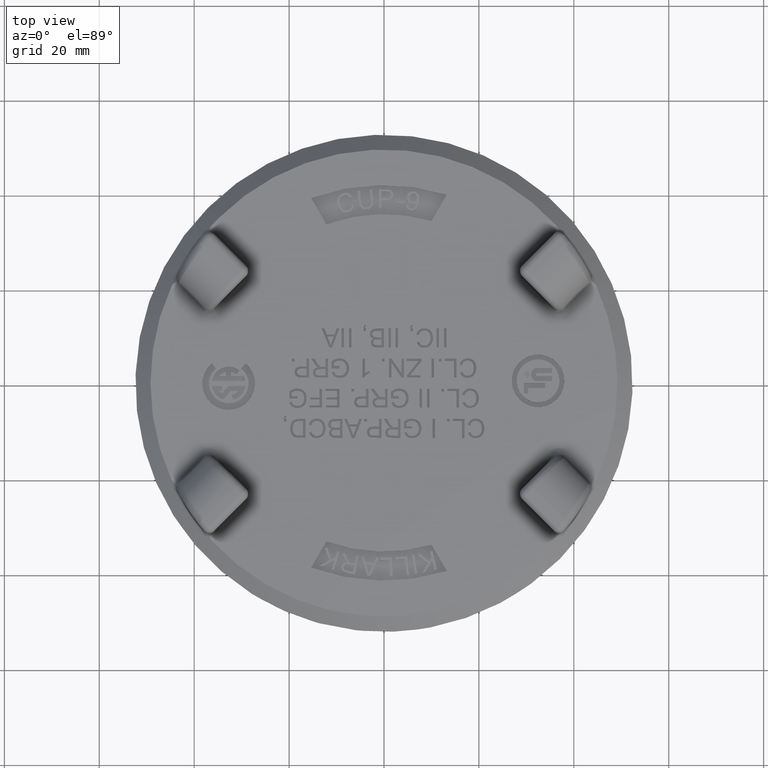
[diagram: clean part render]
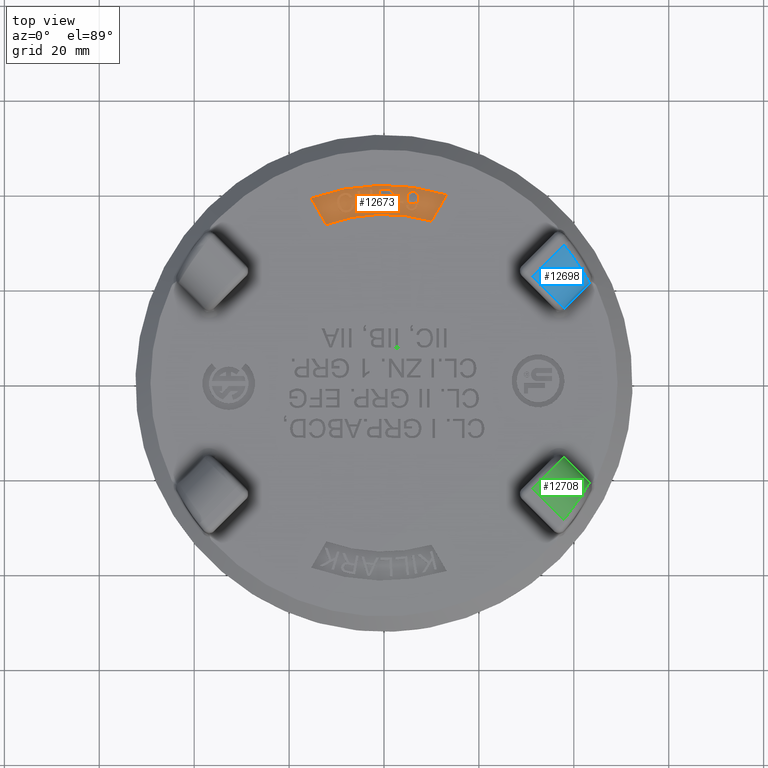
[diagram: same view with three faces highlighted in distinct colors, each labeled with its STEP entity id]
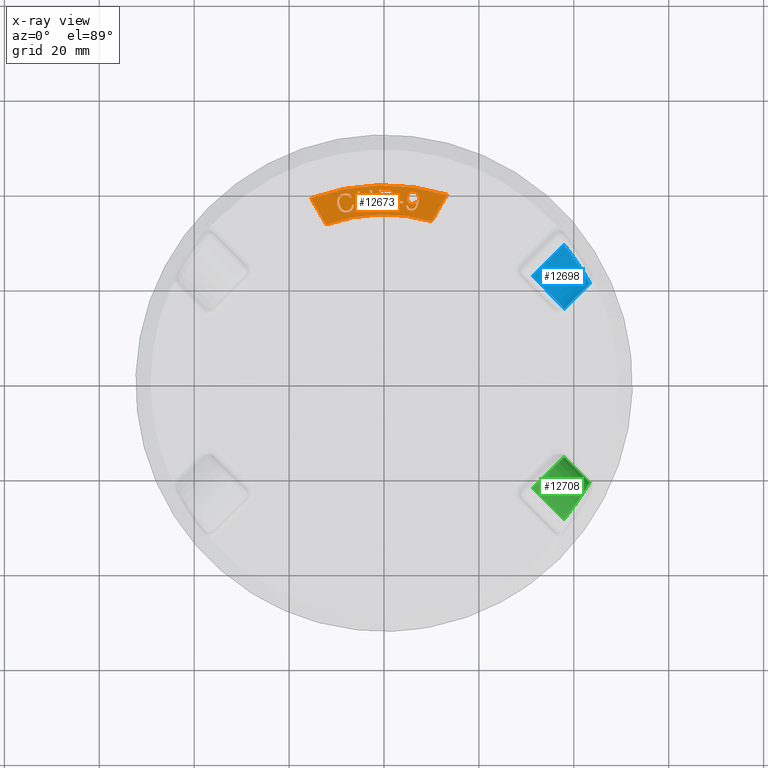
[diagram: x-ray of the same camera — body ghosted, the three highlighted faces saturated]
A machine part, top view with three faces highlighted in distinct colors.
The next image is the same camera in x-ray (body ghosted, the three faces saturated) — at least one of them is partly hidden behind the body in this view.
Their STEP definitions:

[orange] entity #12673 — the highlighted planar face has unit normal (0, 0, 1).
#278=ELLIPSE('',#13491,79.2572808631897,8.90706533019541);
#382=B_SPLINE_CURVE_WITH_KNOTS('',3,(#19733,#19734,#19735,#19736,#19737,
#19738,#19739,#19740,#19741),.UNSPECIFIED.,.F.,.F.,(4,1,1,1,1,1,4),(0.363467789549163,
0.409691499853247,0.455915210157331,0.479027065309373,0.490582992885394,
0.502138920461415,0.548362630765499),.UNSPECIFIED.);
#383=B_SPLINE_CURVE_WITH_KNOTS('',3,(#19743,#19744,#19745,#19746,#19747,
#19748,#19749,#19750,#19751,#19752,#19753,#19754,#19755,#19756,#19757,#19758,
#19759,#19760,#19761,#19762),.UNSPECIFIED.,.F.,.F.,(4,1,1,1,1,1,1,1,1,1,
1,1,1,1,1,1,1,4),(0.548362630765499,0.589313797554621,0.609789380949183,
0.630264964343744,0.650740547738305,0.671216131132866,0.691691714527428,
0.712167297921989,0.73264288131655,0.753118464711112,0.763356256408392,
0.773594048105673,0.794069631500234,0.814545214894796,0.824783006592076,
0.835020798289357,0.855496381683918,0.87597196507848),.UNSPECIFIED.);
#384=B_SPLINE_CURVE_WITH_KNOTS('',3,(#19766,#19767,#19768,#19769),
 .UNSPECIFIED.,.F.,.F.,(4,4),(0.,0.0585242731863902),.UNSPECIFIED.);
#385=B_SPLINE_CURVE_WITH_KNOTS('',3,(#19773,#19774,#19775,#19776,#19777,
#19778,#19779,#19780,#19781,#19782,#19783,#19784,#19785,#19786,#19787,#19788,
#19789,#19790,#19791,#19792,#19793,#19794,#19795,#19796),.UNSPECIFIED.,
 .F.,.F.,(4,1,1,1,1,1,1,1,1,1,1,1,1,1,1,1,1,1,1,1,1,4),(0.0917702085686012,
0.11823171529874,0.131462468663809,0.144693222028878,0.157923975393948,
0.164539352076482,0.171154728759017,0.184385482124086,0.197616235489156,
0.224077742219294,0.237308495584363,0.250539248949433,0.263770002314502,
0.270385378997037,0.277000755679571,0.283616132362106,0.290231509044641,
0.293539197385908,0.296846885727175,0.298500729897809,0.300154574068443,
0.30346226240971),.UNSPECIFIED.);
#386=B_SPLINE_CURVE_WITH_KNOTS('',3,(#19797,#19798,#19799,#19800,#19801,
#19802,#19803,#19804,#19805,#19806,#19807,#19808,#19809,#19810,#19811,#19812,
#19813,#19814,#19815,#19816,#19817,#19818,#19819,#19820,#19821,#19822,#19823,
#19824,#19825,#19826,#19827,#19828,#19829,#19830,#19831,#19832,#19833,#19834,
#19835,#19836,#19837,#19838,#19839,#19840,#19841,#19842),.UNSPECIFIED.,
 .F.,.F.,(4,1,1,1,1,1,1,1,1,1,1,1,1,1,1,1,1,1,1,1,1,1,1,1,1,1,1,1,1,1,1,
1,1,1,1,1,1,1,1,1,1,1,1,4),(0.30346226240971,0.325229066709406,0.336112468859255,
0.346995871009103,0.3687626753088,0.390529479608496,0.412296283908193,0.434063088207889,
0.455829892507586,0.477596696807282,0.499363501106979,0.510246903256827,
0.521130305406675,0.542897109706372,0.564663914006069,0.575547316155917,
0.586430718305765,0.608197522605462,0.629964326905158,0.640847729055007,
0.651731131204855,0.673497935504551,0.695264739804248,0.717031544103945,
0.738798348403641,0.749681750553489,0.760565152703338,0.771448554853186,
0.782331957003034,0.787773658077958,0.793215359152883,0.798657060227807,
0.804098761302731,0.814982163452579,0.825865565602427,0.836748967752276,
0.847632369902124,0.869399174201821,0.891165978501517,0.912932782801214,
0.93469958710091,0.956466391400607,0.978233195700303,1.),.UNSPECIFIED.);
#387=B_SPLINE_CURVE_WITH_KNOTS('',3,(#19857,#19858,#19859,#19860,#19861,
#19862,#19863,#19864,#19865,#19866,#19867,#19868,#19869,#19870,#19871,#19872,
#19873,#19874,#19875,#19876,#19877,#19878,#19879,#19880,#19881,#19882,#19883,
#19884,#19885,#19886,#19887,#19888,#19889),.UNSPECIFIED.,.F.,.F.,(4,1,1,
1,1,1,1,1,1,1,1,1,1,1,1,1,1,1,1,1,1,1,1,1,1,1,1,1,1,1,4),(0.113305528693998,
0.142207398664906,0.171109268635813,0.185560203621267,0.200011138606721,
0.214462073592175,0.228913008577629,0.243363943563083,0.257814878548536,
0.27226581353399,0.286716748519444,0.301167683504898,0.315618618490352,
0.330069553475806,0.34452048846126,0.351745955953986,0.358971423446713,
0.373422358432167,0.387873293417621,0.402324228403075,0.431226098373983,
0.445677033359436,0.46012796834489,0.474578903330344,0.489029838315798,
0.496255305808525,0.503480773301252,0.517931708286706,0.532382643272159,
0.546833578257613,0.575735448228521),.UNSPECIFIED.);
#388=B_SPLINE_CURVE_WITH_KNOTS('',3,(#19892,#19893,#19894,#19895,#19896,
#19897,#19898,#19899,#19900,#19901,#19902,#19903,#19904,#19905,#19906,#19907,
#19908,#19909,#19910,#19911,#19912,#19913,#19914,#19915,#19916,#19917,#19918),
 .UNSPECIFIED.,.F.,.F.,(4,1,1,1,1,1,1,1,1,1,1,1,1,1,1,1,1,1,1,1,1,1,1,1,
4),(0.599351504712554,0.62439203566802,0.649432566623485,0.67447309757895,
0.686993363056683,0.699513628534416,0.705773761273282,0.712033894012148,
0.724554159489881,0.737074424967614,0.749594690445347,0.762114955923079,
0.774635221400812,0.799675752356277,0.81219601783401,0.824716283311743,
0.837236548789475,0.849756814267208,0.874797345222673,0.899837876178139,
0.912358141655871,0.924878407133604,0.949918938089069,0.974959469044535,
1.),.UNSPECIFIED.);
#389=B_SPLINE_CURVE_WITH_KNOTS('',3,(#19925,#19926,#19927,#19928,#19929,
#19930,#19931,#19932,#19933,#19934,#19935,#19936,#19937,#19938,#19939,#19940,
#19941,#19942,#19943,#19944,#19945,#19946,#19947,#19948,#19949,#19950,#19951,
#19952,#19953,#19954,#19955,#19956,#19957,#19958,#19959,#19960),
 .UNSPECIFIED.,.F.,.F.,(4,1,1,1,1,1,1,1,1,1,1,1,1,1,1,1,1,1,1,1,1,1,1,1,
1,1,1,1,1,1,1,1,1,4),(0.0558817175359714,0.0875894107574,0.103443257368114,
0.119297103978829,0.135150950589543,0.1430778738949,0.151004797200257,0.158931720505614,
0.166858643810972,0.182712490421686,0.1985663370324,0.214420183643114,0.230274030253829,
0.238200953559186,0.246127876864543,0.261981723475257,0.277835570085972,
0.285762493391329,0.293689416696686,0.3095432633074,0.325397109918114,0.341250956528829,
0.357104803139543,0.372958649750257,0.388812496360972,0.404666342971686,
0.436374036193115,0.452227882803829,0.468081729414543,0.483935576025257,
0.499789422635972,0.515643269246686,0.5314971158574,0.563204809078829),
 .UNSPECIFIED.);
#390=B_SPLINE_CURVE_WITH_KNOTS('',3,(#19963,#19964,#19965,#19966,#19967,
#19968,#19969,#19970,#19971,#19972,#19973,#19974,#19975,#19976,#19977,#19978,
#19979,#19980,#19981,#19982,#19983,#19984,#19985,#19986,#19987),
 .UNSPECIFIED.,.F.,.F.,(4,1,1,1,1,1,1,1,1,1,1,1,1,1,1,1,1,1,1,1,1,1,4),
(0.587910286267201,0.613665893375501,0.626543696929651,0.639421500483801,
0.652299304037951,0.665177107592101,0.678054911146251,0.690932714700401,
0.703810518254551,0.716688321808701,0.729566125362851,0.742443928917001,
0.755321732471151,0.768199536025301,0.7939551431336,0.8197107502419,0.8454663573502,
0.8712219644585,0.8969775715668,0.9227331786751,0.9484887857834,0.9742443928917,
1.),.UNSPECIFIED.);
#687=FACE_BOUND('',#4286,.T.);
#688=FACE_BOUND('',#4287,.T.);
#689=FACE_BOUND('',#4288,.T.);
#690=FACE_BOUND('',#4289,.T.);
#691=FACE_BOUND('',#4290,.T.);
#1020=LINE('',#19723,#2385);
#1021=LINE('',#19726,#2386);
#1022=LINE('',#19729,#2387);
#1023=LINE('',#19731,#2388);
#1024=LINE('',#19763,#2389);
#1025=LINE('',#19771,#2390);
#1026=LINE('',#19845,#2391);
#1027=LINE('',#19847,#2392);
#1028=LINE('',#19849,#2393);
#1029=LINE('',#19850,#2394);
#1030=LINE('',#19853,#2395);
#1031=LINE('',#19855,#2396);
#1032=LINE('',#19891,#2397);
#1033=LINE('',#19923,#2398);
#1034=LINE('',#19962,#2399);
#2385=VECTOR('',#14614,6.38902524855147);
#2386=VECTOR('',#14617,6.38902524855163);
#2387=VECTOR('',#14618,10.);
#2388=VECTOR('',#14619,10.);
#2389=VECTOR('',#14620,10.);
#2390=VECTOR('',#14621,10.);
#2391=VECTOR('',#14622,10.);
#2392=VECTOR('',#14623,10.);
#2393=VECTOR('',#14624,10.);
#2394=VECTOR('',#14625,10.);
#2395=VECTOR('',#14626,10.);
#2396=VECTOR('',#14627,10.);
#2397=VECTOR('',#14628,10.);
#2398=VECTOR('',#14631,10.);
#2399=VECTOR('',#14632,10.);
#3463=FACE_OUTER_BOUND('',#4285,.T.);
#4285=EDGE_LOOP('',(#8804,#8805,#8806,#8807));
#4286=EDGE_LOOP('',(#8808,#8809,#8810,#8811,#8812));
#4287=EDGE_LOOP('',(#8813,#8814,#8815,#8816));
#4288=EDGE_LOOP('',(#8817,#8818,#8819,#8820));
#4289=EDGE_LOOP('',(#8821,#8822,#8823,#8824,#8825));
#4290=EDGE_LOOP('',(#8826,#8827,#8828,#8829,#8830));
#5114=CIRCLE('',#13489,44.45);
#5115=CIRCLE('',#13490,35.56);
#5671=VERTEX_POINT('',#19719);
#5672=VERTEX_POINT('',#19720);
#5673=VERTEX_POINT('',#19722);
#5674=VERTEX_POINT('',#19724);
#5675=VERTEX_POINT('',#19727);
#5676=VERTEX_POINT('',#19728);
#5677=VERTEX_POINT('',#19730);
#5678=VERTEX_POINT('',#19732);
#5679=VERTEX_POINT('',#19742);
#5680=VERTEX_POINT('',#19764);
#5681=VERTEX_POINT('',#19765);
#5682=VERTEX_POINT('',#19770);
#5683=VERTEX_POINT('',#19772);
#5684=VERTEX_POINT('',#19843);
#5685=VERTEX_POINT('',#19844);
#5686=VERTEX_POINT('',#19846);
#5687=VERTEX_POINT('',#19848);
#5688=VERTEX_POINT('',#19851);
#5689=VERTEX_POINT('',#19852);
#5690=VERTEX_POINT('',#19854);
#5691=VERTEX_POINT('',#19856);
#5692=VERTEX_POINT('',#19890);
#5693=VERTEX_POINT('',#19919);
#5694=VERTEX_POINT('',#19920);
#5695=VERTEX_POINT('',#19922);
#5696=VERTEX_POINT('',#19924);
#5697=VERTEX_POINT('',#19961);
#6914=EDGE_CURVE('',#5671,#5672,#5114,.T.);
#6915=EDGE_CURVE('',#5673,#5671,#1020,.T.);
#6916=EDGE_CURVE('',#5674,#5673,#5115,.T.);
#6917=EDGE_CURVE('',#5672,#5674,#1021,.T.);
#6918=EDGE_CURVE('',#5675,#5676,#1022,.T.);
#6919=EDGE_CURVE('',#5676,#5677,#1023,.T.);
#6920=EDGE_CURVE('',#5677,#5678,#382,.T.);
#6921=EDGE_CURVE('',#5678,#5679,#383,.T.);
#6922=EDGE_CURVE('',#5679,#5675,#1024,.T.);
#6923=EDGE_CURVE('',#5680,#5681,#384,.T.);
#6924=EDGE_CURVE('',#5681,#5682,#1025,.T.);
#6925=EDGE_CURVE('',#5682,#5683,#385,.T.);
#6926=EDGE_CURVE('',#5683,#5680,#386,.T.);
#6927=EDGE_CURVE('',#5684,#5685,#1026,.T.);
#6928=EDGE_CURVE('',#5685,#5686,#1027,.T.);
#6929=EDGE_CURVE('',#5686,#5687,#1028,.T.);
#6930=EDGE_CURVE('',#5687,#5684,#1029,.T.);
#6931=EDGE_CURVE('',#5688,#5689,#1030,.T.);
#6932=EDGE_CURVE('',#5689,#5690,#1031,.T.);
#6933=EDGE_CURVE('',#5690,#5691,#387,.T.);
#6934=EDGE_CURVE('',#5691,#5692,#1032,.T.);
#6935=EDGE_CURVE('',#5692,#5688,#388,.T.);
#6936=EDGE_CURVE('',#5693,#5694,#278,.T.);
#6937=EDGE_CURVE('',#5694,#5695,#1033,.T.);
#6938=EDGE_CURVE('',#5695,#5696,#389,.T.);
#6939=EDGE_CURVE('',#5696,#5697,#1034,.T.);
#6940=EDGE_CURVE('',#5697,#5693,#390,.T.);
#8804=ORIENTED_EDGE('',*,*,#6914,.F.);
#8805=ORIENTED_EDGE('',*,*,#6915,.F.);
#8806=ORIENTED_EDGE('',*,*,#6916,.F.);
#8807=ORIENTED_EDGE('',*,*,#6917,.F.);
#8808=ORIENTED_EDGE('',*,*,#6918,.T.);
#8809=ORIENTED_EDGE('',*,*,#6919,.T.);
#8810=ORIENTED_EDGE('',*,*,#6920,.T.);
#8811=ORIENTED_EDGE('',*,*,#6921,.T.);
#8812=ORIENTED_EDGE('',*,*,#6922,.T.);
#8813=ORIENTED_EDGE('',*,*,#6923,.T.);
#8814=ORIENTED_EDGE('',*,*,#6924,.T.);
#8815=ORIENTED_EDGE('',*,*,#6925,.T.);
#8816=ORIENTED_EDGE('',*,*,#6926,.T.);
#8817=ORIENTED_EDGE('',*,*,#6927,.T.);
#8818=ORIENTED_EDGE('',*,*,#6928,.T.);
#8819=ORIENTED_EDGE('',*,*,#6929,.T.);
#8820=ORIENTED_EDGE('',*,*,#6930,.T.);
#8821=ORIENTED_EDGE('',*,*,#6931,.T.);
#8822=ORIENTED_EDGE('',*,*,#6932,.T.);
#8823=ORIENTED_EDGE('',*,*,#6933,.T.);
#8824=ORIENTED_EDGE('',*,*,#6934,.T.);
#8825=ORIENTED_EDGE('',*,*,#6935,.T.);
#8826=ORIENTED_EDGE('',*,*,#6936,.T.);
#8827=ORIENTED_EDGE('',*,*,#6937,.T.);
#8828=ORIENTED_EDGE('',*,*,#6938,.T.);
#8829=ORIENTED_EDGE('',*,*,#6939,.T.);
#8830=ORIENTED_EDGE('',*,*,#6940,.T.);
#12173=PLANE('',#13488);
#12673=ADVANCED_FACE('',(#3463,#687,#688,#689,#690,#691),#12173,.T.);
#13488=AXIS2_PLACEMENT_3D('',#19718,#14610,#14611);
#13489=AXIS2_PLACEMENT_3D('',#19721,#14612,#14613);
#13490=AXIS2_PLACEMENT_3D('',#19725,#14615,#14616);
#13491=AXIS2_PLACEMENT_3D('',#19921,#14629,#14630);
#14610=DIRECTION('center_axis',(1.57009245868377E-16,1.57009245868378E-16,
1.));
#14611=DIRECTION('ref_axis',(0.707106781186547,0.707106781186548,-2.22044604925031E-16));
#14612=DIRECTION('center_axis',(-1.57009245868377E-16,-1.57009245868378E-16,
-1.));
#14613=DIRECTION('ref_axis',(-0.707106781186547,-0.707106781186548,2.22044604925031E-16));
#14614=DIRECTION('',(-0.5,0.866025403784438,-5.74693726168631E-17));
#14615=DIRECTION('center_axis',(1.57009245868377E-16,1.57009245868378E-16,
1.));
#14616=DIRECTION('ref_axis',(-0.707106781186547,-0.707106781186548,2.22044604925031E-16));
#14617=DIRECTION('',(-0.500000000000001,-0.866025403784438,2.14478618485241E-16));
#14618=DIRECTION('',(-0.99995953786908,0.00899570034269864,1.5559048481285E-16));
#14619=DIRECTION('',(0.00899570034269537,0.99995953786908,-1.5841530106658E-16));
#14620=DIRECTION('',(-0.00899570034269598,-0.99995953786908,1.5841530106658E-16));
#14621=DIRECTION('',(0.997999028420859,-0.0632292596115204,-1.46767496461312E-16));
#14622=DIRECTION('',(-0.996221776074981,0.0868456842566737,1.42780454387125E-16));
#14623=DIRECTION('',(0.0868456842566775,0.996221776074981,-1.70051605171253E-16));
#14624=DIRECTION('',(0.996221776074981,-0.086845684256674,-1.42780454387125E-16));
#14625=DIRECTION('',(-0.0868456842566648,-0.996221776074982,1.70051605171251E-16));
#14626=DIRECTION('',(-0.0991362595321481,0.995073867632938,-1.40670488193023E-16));
#14627=DIRECTION('',(0.995073867632939,0.0991362595321455,-1.71801106887731E-16));
#14628=DIRECTION('',(0.995073867632938,0.0991362595321508,-1.71801106887732E-16));
#14629=DIRECTION('center_axis',(1.57009245868377E-16,1.57009245868378E-16,
1.));
#14630=DIRECTION('ref_axis',(-0.772594850998069,0.634899359120224,2.16194653392155E-17));
#14631=DIRECTION('',(0.999359376972054,-0.0357887644104787,-1.51289495219223E-16));
#14632=DIRECTION('',(-0.903283464134544,-0.429044267437637,2.09187772383674E-16));
#19718=CARTESIAN_POINT('Origin',(-0.0350789437184983,-2.77734238203105,
13.5165767122275));
#19719=CARTESIAN_POINT('',(-15.3593153427096,38.9475935530646,13.5165767122275));
#19720=CARTESIAN_POINT('',(13.2069422481487,39.6543836582108,13.5165767122275));
#19721=CARTESIAN_POINT('Origin',(-0.0350789437184983,-2.77734238203105,
13.5165767122275));
#19722=CARTESIAN_POINT('',(-12.1648027184338,33.4145353823988,13.5165767122275));
#19723=CARTESIAN_POINT('',(-12.1648027184338,33.4145353823988,13.5165767122275));
#19724=CARTESIAN_POINT('',(10.0124296238723,34.1213254875452,13.5165767122275));
#19725=CARTESIAN_POINT('Origin',(2.12222751630891E-15,2.12222751630891E-15,
13.5165767122275));
#19726=CARTESIAN_POINT('',(13.2069422481482,39.6543836582111,13.5165767122275));
#19727=CARTESIAN_POINT('',(-0.564133704252513,36.836565263683,13.5165767122275));
#19728=CARTESIAN_POINT('',(-1.09003017840075,36.841296262202,13.5165767122275));
#19729=CARTESIAN_POINT('',(-0.564133704252509,36.836565263683,13.5165767122275));
#19730=CARTESIAN_POINT('',(-1.05432849266568,40.8098856781199,13.5165767122275));
#19731=CARTESIAN_POINT('',(-1.09003017840075,36.841296262202,13.5165767122275));
#19732=CARTESIAN_POINT('',(1.04688898714448,40.7534159165797,13.5165767122275));
#19733=CARTESIAN_POINT('Ctrl Pts',(-1.05432849266568,40.8098856781199,13.5165767122275));
#19734=CARTESIAN_POINT('Ctrl Pts',(-0.863801005570784,40.808171680587,13.5165767122275));
#19735=CARTESIAN_POINT('Ctrl Pts',(-0.482830507768899,40.8047274182045,
13.5165767122275));
#19736=CARTESIAN_POINT('Ctrl Pts',(-0.00619500357707654,40.8005034268093,
13.5165767122275));
#19737=CARTESIAN_POINT('Ctrl Pts',(0.32667372254346,40.7973971768616,13.5165767122275));
#19738=CARTESIAN_POINT('Ctrl Pts',(0.518088211711158,40.7958539861528,13.5165767122275));
#19739=CARTESIAN_POINT('Ctrl Pts',(0.778885788171975,40.788501180721,13.5165767122275));
#19740=CARTESIAN_POINT('Ctrl Pts',(0.946273482149587,40.7727132325619,13.5165767122275));
#19741=CARTESIAN_POINT('Ctrl Pts',(1.04688898714448,40.7534159165797,13.5165767122275));
#19742=CARTESIAN_POINT('',(-0.549621046633419,38.4497882316783,13.5165767122275));
#19743=CARTESIAN_POINT('Ctrl Pts',(1.04688898714448,40.7534159165797,13.5165767122275));
#19744=CARTESIAN_POINT('Ctrl Pts',(1.22861893654046,40.7214448016615,13.5165767122275));
#19745=CARTESIAN_POINT('Ctrl Pts',(1.45791932047612,40.6362692256785,13.5165767122275));
#19746=CARTESIAN_POINT('Ctrl Pts',(1.6848080522042,40.4428196126137,13.5165767122275));
#19747=CARTESIAN_POINT('Ctrl Pts',(1.82276701012181,40.2483423084584,13.5165767122275));
#19748=CARTESIAN_POINT('Ctrl Pts',(1.92538375504175,40.0101634222952,13.5165767122275));
#19749=CARTESIAN_POINT('Ctrl Pts',(1.96954521153713,39.7551153618703,13.5165767122275));
#19750=CARTESIAN_POINT('Ctrl Pts',(1.96360883583161,39.47686497562,13.5165767122275));
#19751=CARTESIAN_POINT('Ctrl Pts',(1.910425246878,39.2279100222914,13.5165767122275));
#19752=CARTESIAN_POINT('Ctrl Pts',(1.80951109743341,39.0008476173896,13.5165767122275));
#19753=CARTESIAN_POINT('Ctrl Pts',(1.68683401034991,38.8304324482667,13.5165767122275));
#19754=CARTESIAN_POINT('Ctrl Pts',(1.56328529869953,38.707369051912,13.5165767122275));
#19755=CARTESIAN_POINT('Ctrl Pts',(1.41208664725309,38.6040758503441,13.5165767122275));
#19756=CARTESIAN_POINT('Ctrl Pts',(1.17577010291243,38.5074144805631,13.5165767122275));
#19757=CARTESIAN_POINT('Ctrl Pts',(0.874927401051902,38.4552446947192,13.5165767122275));
#19758=CARTESIAN_POINT('Ctrl Pts',(0.596925210557571,38.4390992833266,13.5165767122275));
#19759=CARTESIAN_POINT('Ctrl Pts',(0.29045448185985,38.4424476996951,13.5165767122275));
#19760=CARTESIAN_POINT('Ctrl Pts',(-0.0911072315808822,38.4455845604329,
13.5165767122275));
#19761=CARTESIAN_POINT('Ctrl Pts',(-0.396821881550675,38.4484136405577,
13.5165767122275));
#19762=CARTESIAN_POINT('Ctrl Pts',(-0.549621046633419,38.4497882316783,
13.5165767122275));
#19763=CARTESIAN_POINT('',(-0.549621046633419,38.4497882316783,13.5165767122275));
#19764=CARTESIAN_POINT('',(4.88898617211524,36.7072746313057,13.5165767122275));
#19765=CARTESIAN_POINT('',(4.6521131590449,37.4805094360629,13.5165767122275));
#19766=CARTESIAN_POINT('Ctrl Pts',(4.88898617211524,36.7072746313057,13.5165767122275));
#19767=CARTESIAN_POINT('Ctrl Pts',(4.72128482477789,36.9084259197049,13.5165767122275));
#19768=CARTESIAN_POINT('Ctrl Pts',(4.64255611020213,37.1654495725024,13.5165767122275));
#19769=CARTESIAN_POINT('Ctrl Pts',(4.65211315904491,37.4805094360629,13.5165767122275));
#19770=CARTESIAN_POINT('',(5.12125070816723,37.4507867419097,13.5165767122275));
#19771=CARTESIAN_POINT('',(4.65211315904491,37.4805094360629,13.5165767122275));
#19772=CARTESIAN_POINT('',(6.823898568964,38.1003479969105,13.5165767122275));
#19773=CARTESIAN_POINT('Ctrl Pts',(5.12125070816723,37.4507867419097,13.5165767122275));
#19774=CARTESIAN_POINT('Ctrl Pts',(5.12459049594489,37.2958124401314,13.5165767122275));
#19775=CARTESIAN_POINT('Ctrl Pts',(5.16197981750456,37.1012363398104,13.5165767122275));
#19776=CARTESIAN_POINT('Ctrl Pts',(5.27768829980317,36.9232381951719,13.5165767122275));
#19777=CARTESIAN_POINT('Ctrl Pts',(5.39349119091756,36.8236273779655,13.5165767122275));
#19778=CARTESIAN_POINT('Ctrl Pts',(5.51275940038159,36.7659104742927,13.5165767122275));
#19779=CARTESIAN_POINT('Ctrl Pts',(5.62150324720427,36.7357489411907,13.5165767122275));
#19780=CARTESIAN_POINT('Ctrl Pts',(5.74104611102141,36.716049318777,13.5165767122275));
#19781=CARTESIAN_POINT('Ctrl Pts',(5.88265977945568,36.71374365582,13.5165767122275));
#19782=CARTESIAN_POINT('Ctrl Pts',(6.09328546981878,36.7584151356414,13.5165767122275));
#19783=CARTESIAN_POINT('Ctrl Pts',(6.27553639438043,36.8683696811466,13.5165767122275));
#19784=CARTESIAN_POINT('Ctrl Pts',(6.42186553569305,37.0208038250846,13.5165767122275));
#19785=CARTESIAN_POINT('Ctrl Pts',(6.52538570612785,37.1729441634767,13.5165767122275));
#19786=CARTESIAN_POINT('Ctrl Pts',(6.60750260596485,37.3331635101735,13.5165767122275));
#19787=CARTESIAN_POINT('Ctrl Pts',(6.67090310912299,37.4825187618677,13.5165767122275));
#19788=CARTESIAN_POINT('Ctrl Pts',(6.71241260638134,37.5956990037534,13.5165767122275));
#19789=CARTESIAN_POINT('Ctrl Pts',(6.74833790638669,37.7109094674216,13.5165767122275));
#19790=CARTESIAN_POINT('Ctrl Pts',(6.77350200433807,37.8082586670914,13.5165767122275));
#19791=CARTESIAN_POINT('Ctrl Pts',(6.79080607523749,37.8872061364581,13.5165767122275));
#19792=CARTESIAN_POINT('Ctrl Pts',(6.80039141712546,37.9364443460617,13.5165767122275));
#19793=CARTESIAN_POINT('Ctrl Pts',(6.80744011860685,37.9770876326755,13.5165767122275));
#19794=CARTESIAN_POINT('Ctrl Pts',(6.81367080988716,38.0140582204139,13.5165767122275));
#19795=CARTESIAN_POINT('Ctrl Pts',(6.81934111969629,38.0590080028323,13.5165767122275));
#19796=CARTESIAN_POINT('Ctrl Pts',(6.823898568964,38.1003479969105,13.5165767122275));
#19797=CARTESIAN_POINT('Ctrl Pts',(6.823898568964,38.1003479969105,13.5165767122275));
#19798=CARTESIAN_POINT('Ctrl Pts',(6.75680881233146,38.0233339544696,13.5165767122275));
#19799=CARTESIAN_POINT('Ctrl Pts',(6.64180378182911,37.9238326526842,13.5165767122275));
#19800=CARTESIAN_POINT('Ctrl Pts',(6.46074006778673,37.823725596681,13.5165767122275));
#19801=CARTESIAN_POINT('Ctrl Pts',(6.25848159087079,37.7439345779284,13.5165767122275));
#19802=CARTESIAN_POINT('Ctrl Pts',(6.00022536362297,37.7013519235282,13.5165767122275));
#19803=CARTESIAN_POINT('Ctrl Pts',(5.6697725884703,37.746182134478,13.5165767122275));
#19804=CARTESIAN_POINT('Ctrl Pts',(5.38684158435849,37.8639694997569,13.5165767122275));
#19805=CARTESIAN_POINT('Ctrl Pts',(5.1507844761609,38.0538831451029,13.5165767122275));
#19806=CARTESIAN_POINT('Ctrl Pts',(4.95504170650267,38.3223505701044,13.5165767122275));
#19807=CARTESIAN_POINT('Ctrl Pts',(4.84302988358135,38.6280062409938,13.5165767122275));
#19808=CARTESIAN_POINT('Ctrl Pts',(4.81832147064463,38.91366470598,13.5165767122275));
#19809=CARTESIAN_POINT('Ctrl Pts',(4.84038566020638,39.1634124625036,13.5165767122275));
#19810=CARTESIAN_POINT('Ctrl Pts',(4.88872611259731,39.4181619915384,13.5165767122275));
#19811=CARTESIAN_POINT('Ctrl Pts',(4.98911621581908,39.6918333296366,13.5165767122275));
#19812=CARTESIAN_POINT('Ctrl Pts',(5.14464483042099,39.9180064683031,13.5165767122275));
#19813=CARTESIAN_POINT('Ctrl Pts',(5.30176740483371,40.0680231533438,13.5165767122275));
#19814=CARTESIAN_POINT('Ctrl Pts',(5.48023494623965,40.1975496422036,13.5165767122275));
#19815=CARTESIAN_POINT('Ctrl Pts',(5.71613875929432,40.3072612973976,13.5165767122275));
#19816=CARTESIAN_POINT('Ctrl Pts',(5.97413582758957,40.3496835091708,13.5165767122275));
#19817=CARTESIAN_POINT('Ctrl Pts',(6.19203347907068,40.342927852809,13.5165767122275));
#19818=CARTESIAN_POINT('Ctrl Pts',(6.42101393922886,40.3088612746193,13.5165767122275));
#19819=CARTESIAN_POINT('Ctrl Pts',(6.68148494673296,40.2183977810133,13.5165767122275));
#19820=CARTESIAN_POINT('Ctrl Pts',(6.95881524948034,40.0292682906322,13.5165767122275));
#19821=CARTESIAN_POINT('Ctrl Pts',(7.18184300430686,39.771206946639,13.5165767122275));
#19822=CARTESIAN_POINT('Ctrl Pts',(7.30428377790843,39.5077679948294,13.5165767122275));
#19823=CARTESIAN_POINT('Ctrl Pts',(7.36752395507188,39.2686349035674,13.5165767122275));
#19824=CARTESIAN_POINT('Ctrl Pts',(7.39331950712725,39.0573485161212,13.5165767122275));
#19825=CARTESIAN_POINT('Ctrl Pts',(7.39770704499037,38.8150727701417,13.5165767122275));
#19826=CARTESIAN_POINT('Ctrl Pts',(7.38329883690815,38.586826038054,13.5165767122275));
#19827=CARTESIAN_POINT('Ctrl Pts',(7.36101846207668,38.3891454072307,13.5165767122275));
#19828=CARTESIAN_POINT('Ctrl Pts',(7.33858599563492,38.2315425052064,13.5165767122275));
#19829=CARTESIAN_POINT('Ctrl Pts',(7.31175744584731,38.0718955804186,13.5165767122275));
#19830=CARTESIAN_POINT('Ctrl Pts',(7.27307789485236,37.8724007578813,13.5165767122275));
#19831=CARTESIAN_POINT('Ctrl Pts',(7.21794529004055,37.6408419300165,13.5165767122275));
#19832=CARTESIAN_POINT('Ctrl Pts',(7.14137952796715,37.3939518589811,13.5165767122275));
#19833=CARTESIAN_POINT('Ctrl Pts',(7.05423597053552,37.1769653369625,13.5165767122275));
#19834=CARTESIAN_POINT('Ctrl Pts',(6.92433312129376,36.9304258571474,13.5165767122275));
#19835=CARTESIAN_POINT('Ctrl Pts',(6.73306430063274,36.6786717536495,13.5165767122275));
#19836=CARTESIAN_POINT('Ctrl Pts',(6.45650174503464,36.4628172619122,13.5165767122275));
#19837=CARTESIAN_POINT('Ctrl Pts',(6.13749840336988,36.3347872645589,13.5165767122275));
#19838=CARTESIAN_POINT('Ctrl Pts',(5.796961440546,36.2996184787684,13.5165767122275));
#19839=CARTESIAN_POINT('Ctrl Pts',(5.41878568718205,36.3571195464462,13.5165767122275));
#19840=CARTESIAN_POINT('Ctrl Pts',(5.11529240341226,36.4883735455728,13.5165767122275));
#19841=CARTESIAN_POINT('Ctrl Pts',(4.95673346783482,36.6260143669374,13.5165767122275));
#19842=CARTESIAN_POINT('Ctrl Pts',(4.88898617211524,36.7072746313057,13.5165767122275));
#19843=CARTESIAN_POINT('',(4.04890892755299,37.8121621349002,13.5165767122275));
#19844=CARTESIAN_POINT('',(2.55702126284298,37.9422175183373,13.5165767122275));
#19845=CARTESIAN_POINT('',(4.048908927553,37.8121621349002,13.5165767122275));
#19846=CARTESIAN_POINT('',(2.5996088900973,38.4307475129509,13.5165767122275));
#19847=CARTESIAN_POINT('',(2.55702126284298,37.9422175183373,13.5165767122275));
#19848=CARTESIAN_POINT('',(4.09149655480731,38.3006921295137,13.5165767122275));
#19849=CARTESIAN_POINT('',(2.59960889009731,38.4307475129509,13.5165767122275));
#19850=CARTESIAN_POINT('',(4.09149655480731,38.3006921295137,13.5165767122275));
#19851=CARTESIAN_POINT('',(-2.79313771886619,38.420630385482,13.5165767122275));
#19852=CARTESIAN_POINT('',(-3.02020768553825,40.6998306601946,13.5165767122275));
#19853=CARTESIAN_POINT('',(-2.79313771886619,38.420630385482,13.5165767122275));
#19854=CARTESIAN_POINT('',(-2.49688067210691,40.7519681791379,13.5165767122275));
#19855=CARTESIAN_POINT('',(-3.02020768553825,40.6998306601946,13.5165767122275));
#19856=CARTESIAN_POINT('',(-5.60350338697446,40.4424645676501,13.5165767122275));
#19857=CARTESIAN_POINT('Ctrl Pts',(-2.49688067210691,40.7519681791379,13.5165767122275));
#19858=CARTESIAN_POINT('Ctrl Pts',(-2.47314067595911,40.5136794854161,13.5165767122275));
#19859=CARTESIAN_POINT('Ctrl Pts',(-2.42566076891418,40.0371007670628,13.5165767122275));
#19860=CARTESIAN_POINT('Ctrl Pts',(-2.36631045885465,39.4413840236696,13.5165767122275));
#19861=CARTESIAN_POINT('Ctrl Pts',(-2.31883110593911,38.9647966544033,13.5165767122275));
#19862=CARTESIAN_POINT('Ctrl Pts',(-2.28321916160823,38.6073940583799,13.5165767122275));
#19863=CARTESIAN_POINT('Ctrl Pts',(-2.24761648828816,38.2498467259267,13.5165767122275));
#19864=CARTESIAN_POINT('Ctrl Pts',(-2.24510616040596,37.9406629175587,13.5165767122275));
#19865=CARTESIAN_POINT('Ctrl Pts',(-2.27071150717518,37.6705227287409,13.5165767122275));
#19866=CARTESIAN_POINT('Ctrl Pts',(-2.32297929038436,37.4466009321882,13.5165767122275));
#19867=CARTESIAN_POINT('Ctrl Pts',(-2.414720906484,37.2441894128954,13.5165767122275));
#19868=CARTESIAN_POINT('Ctrl Pts',(-2.54786231816387,37.0614997638509,13.5165767122275));
#19869=CARTESIAN_POINT('Ctrl Pts',(-2.72222640589987,36.8974470742162,13.5165767122275));
#19870=CARTESIAN_POINT('Ctrl Pts',(-2.9383136156651,36.7593531290721,13.5165767122275));
#19871=CARTESIAN_POINT('Ctrl Pts',(-3.19787504676805,36.6582390078443,13.5165767122275));
#19872=CARTESIAN_POINT('Ctrl Pts',(-3.44795028045941,36.6029759612345,13.5165767122275));
#19873=CARTESIAN_POINT('Ctrl Pts',(-3.6745848301698,36.576501978104,13.5165767122275));
#19874=CARTESIAN_POINT('Ctrl Pts',(-3.89532325371074,36.5630461883369,13.5165767122275));
#19875=CARTESIAN_POINT('Ctrl Pts',(-4.14784495759575,36.5714132874223,13.5165767122275));
#19876=CARTESIAN_POINT('Ctrl Pts',(-4.41716532298466,36.6214849257287,13.5165767122275));
#19877=CARTESIAN_POINT('Ctrl Pts',(-4.72954919327125,36.7431208288709,13.5165767122275));
#19878=CARTESIAN_POINT('Ctrl Pts',(-4.97296136965025,36.9370355850205,13.5165767122275));
#19879=CARTESIAN_POINT('Ctrl Pts',(-5.14263836881718,37.2014700146101,13.5165767122275));
#19880=CARTESIAN_POINT('Ctrl Pts',(-5.24281805758306,37.4474148140114,13.5165767122275));
#19881=CARTESIAN_POINT('Ctrl Pts',(-5.3210942975654,37.7476659981235,13.5165767122275));
#19882=CARTESIAN_POINT('Ctrl Pts',(-5.36576089753295,38.0435495152576,13.5165767122275));
#19883=CARTESIAN_POINT('Ctrl Pts',(-5.39036110191423,38.3053842391385,13.5165767122275));
#19884=CARTESIAN_POINT('Ctrl Pts',(-5.41647138501948,38.56380242273,13.5165767122275));
#19885=CARTESIAN_POINT('Ctrl Pts',(-5.44859112232856,38.8879973865648,13.5165767122275));
#19886=CARTESIAN_POINT('Ctrl Pts',(-5.48735664856149,39.2765294287426,13.5165767122275));
#19887=CARTESIAN_POINT('Ctrl Pts',(-5.53896617776253,39.7947482619705,13.5165767122275));
#19888=CARTESIAN_POINT('Ctrl Pts',(-5.57769083846298,40.1833727620685,13.5165767122275));
#19889=CARTESIAN_POINT('Ctrl Pts',(-5.60350338697447,40.4424645676501,13.5165767122275));
#19890=CARTESIAN_POINT('',(-5.08017637354311,40.4946020865934,13.5165767122275));
#19891=CARTESIAN_POINT('',(-5.60350338697446,40.4424645676501,13.5165767122275));
#19892=CARTESIAN_POINT('Ctrl Pts',(-5.08017637354311,40.4946020865934,13.5165767122275));
#19893=CARTESIAN_POINT('Ctrl Pts',(-5.06174892274039,40.3096377271611,13.5165767122275));
#19894=CARTESIAN_POINT('Ctrl Pts',(-5.02489334405236,39.9397116779947,13.5165767122275));
#19895=CARTESIAN_POINT('Ctrl Pts',(-4.96961403851585,39.3848065860557,13.5165767122275));
#19896=CARTESIAN_POINT('Ctrl Pts',(-4.92353610162348,38.922432395826,13.5165767122275));
#19897=CARTESIAN_POINT('Ctrl Pts',(-4.88670015833046,38.5524289254101,13.5165767122275));
#19898=CARTESIAN_POINT('Ctrl Pts',(-4.86361760269279,38.3214136921207,13.5165767122275));
#19899=CARTESIAN_POINT('Ctrl Pts',(-4.84528917521833,38.136058889318,13.5165767122275));
#19900=CARTESIAN_POINT('Ctrl Pts',(-4.82326112710256,37.965784954488,13.5165767122275));
#19901=CARTESIAN_POINT('Ctrl Pts',(-4.78976281852282,37.777951561864,13.5165767122275));
#19902=CARTESIAN_POINT('Ctrl Pts',(-4.73915815744559,37.5926472004227,13.5165767122275));
#19903=CARTESIAN_POINT('Ctrl Pts',(-4.67986342882456,37.4524757820976,13.5165767122275));
#19904=CARTESIAN_POINT('Ctrl Pts',(-4.60521335982183,37.338952818226,13.5165767122275));
#19905=CARTESIAN_POINT('Ctrl Pts',(-4.48077138177174,37.2088399339922,13.5165767122275));
#19906=CARTESIAN_POINT('Ctrl Pts',(-4.31793280252228,37.1149660626374,13.5165767122275));
#19907=CARTESIAN_POINT('Ctrl Pts',(-4.12608631179135,37.0601732420011,13.5165767122275));
#19908=CARTESIAN_POINT('Ctrl Pts',(-3.96946974070051,37.0397245591893,13.5165767122275));
#19909=CARTESIAN_POINT('Ctrl Pts',(-3.79901587545166,37.0399946353077,13.5165767122275));
#19910=CARTESIAN_POINT('Ctrl Pts',(-3.55505998536123,37.0677747641204,13.5165767122275));
#19911=CARTESIAN_POINT('Ctrl Pts',(-3.30291478185398,37.1284827963512,13.5165767122275));
#19912=CARTESIAN_POINT('Ctrl Pts',(-3.10708563642654,37.2278789913087,13.5165767122275));
#19913=CARTESIAN_POINT('Ctrl Pts',(-2.98644538279287,37.3308703757032,13.5165767122275));
#19914=CARTESIAN_POINT('Ctrl Pts',(-2.89012895292849,37.4466035306117,13.5165767122275));
#19915=CARTESIAN_POINT('Ctrl Pts',(-2.80691875193102,37.6470764378869,13.5165767122275));
#19916=CARTESIAN_POINT('Ctrl Pts',(-2.7657255190488,37.9800393275859,13.5165767122275));
#19917=CARTESIAN_POINT('Ctrl Pts',(-2.77747815730749,38.2634485373955,13.5165767122275));
#19918=CARTESIAN_POINT('Ctrl Pts',(-2.79313771886619,38.420630385482,13.5165767122275));
#19919=CARTESIAN_POINT('',(-7.05527148066506,36.8059761787172,13.5165767122275));
#19920=CARTESIAN_POINT('',(-6.8101658745682,37.6313622100306,13.5165767122275));
#19921=CARTESIAN_POINT('Origin',(-68.3045088902136,87.1070660422403,13.5165767122275));
#19922=CARTESIAN_POINT('',(-6.26803840788047,37.611947700463,13.5165767122275));
#19923=CARTESIAN_POINT('',(-6.8101658745682,37.6313622100306,13.5165767122275));
#19924=CARTESIAN_POINT('',(-6.67556161418164,39.1827832147794,13.5165767122275));
#19925=CARTESIAN_POINT('Ctrl Pts',(-6.26803840788047,37.611947700463,13.5165767122275));
#19926=CARTESIAN_POINT('Ctrl Pts',(-6.28000840314813,37.3063841810943,13.5165767122275));
#19927=CARTESIAN_POINT('Ctrl Pts',(-6.3726136974215,36.9065443095948,13.5165767122275));
#19928=CARTESIAN_POINT('Ctrl Pts',(-6.65195847560736,36.4864915008336,13.5165767122275));
#19929=CARTESIAN_POINT('Ctrl Pts',(-6.92809061040358,36.2356368472468,13.5165767122275));
#19930=CARTESIAN_POINT('Ctrl Pts',(-7.20852137563449,36.0846809542055,13.5165767122275));
#19931=CARTESIAN_POINT('Ctrl Pts',(-7.46224949035018,35.9983437366883,13.5165767122275));
#19932=CARTESIAN_POINT('Ctrl Pts',(-7.67165787691307,35.9511059301995,13.5165767122275));
#19933=CARTESIAN_POINT('Ctrl Pts',(-7.87180174389055,35.9207933973697,13.5165767122275));
#19934=CARTESIAN_POINT('Ctrl Pts',(-8.12530834439955,35.9029997800021,13.5165767122275));
#19935=CARTESIAN_POINT('Ctrl Pts',(-8.41798732708605,35.922734907835,13.5165767122275));
#19936=CARTESIAN_POINT('Ctrl Pts',(-8.72774769469843,36.0158896971001,13.5165767122275));
#19937=CARTESIAN_POINT('Ctrl Pts',(-9.00492536103018,36.1699535163456,13.5165767122275));
#19938=CARTESIAN_POINT('Ctrl Pts',(-9.2108729210535,36.3478820714311,13.5165767122275));
#19939=CARTESIAN_POINT('Ctrl Pts',(-9.35983325436586,36.5200319940878,13.5165767122275));
#19940=CARTESIAN_POINT('Ctrl Pts',(-9.49890520218837,36.7144735565666,13.5165767122275));
#19941=CARTESIAN_POINT('Ctrl Pts',(-9.64727102761664,36.9735641255253,13.5165767122275));
#19942=CARTESIAN_POINT('Ctrl Pts',(-9.76091386314234,37.2540776127806,13.5165767122275));
#19943=CARTESIAN_POINT('Ctrl Pts',(-9.83056799541007,37.4909995624344,13.5165767122275));
#19944=CARTESIAN_POINT('Ctrl Pts',(-9.88636666857809,37.7393239586611,13.5165767122275));
#19945=CARTESIAN_POINT('Ctrl Pts',(-9.92499570801088,38.0381371131955,13.5165767122275));
#19946=CARTESIAN_POINT('Ctrl Pts',(-9.9216808646913,38.3763245244829,13.5165767122275));
#19947=CARTESIAN_POINT('Ctrl Pts',(-9.86851239929664,38.6960703020309,13.5165767122275));
#19948=CARTESIAN_POINT('Ctrl Pts',(-9.76713446581074,38.9912066049952,13.5165767122275));
#19949=CARTESIAN_POINT('Ctrl Pts',(-9.62058298703078,39.2511913405799,13.5165767122275));
#19950=CARTESIAN_POINT('Ctrl Pts',(-9.42837882392584,39.4792509392358,13.5165767122275));
#19951=CARTESIAN_POINT('Ctrl Pts',(-9.11238299878033,39.7398206741339,13.5165767122275));
#19952=CARTESIAN_POINT('Ctrl Pts',(-8.75137240509659,39.9162188833209,13.5165767122275));
#19953=CARTESIAN_POINT('Ctrl Pts',(-8.32886054202976,40.0142139793116,13.5165767122275));
#19954=CARTESIAN_POINT('Ctrl Pts',(-8.02941922564456,40.0383501726674,13.5165767122275));
#19955=CARTESIAN_POINT('Ctrl Pts',(-7.74776260677619,40.0132698221792,13.5165767122275));
#19956=CARTESIAN_POINT('Ctrl Pts',(-7.48362315554046,39.9389704162614,13.5165767122275));
#19957=CARTESIAN_POINT('Ctrl Pts',(-7.23788109941129,39.8160259911683,13.5165767122275));
#19958=CARTESIAN_POINT('Ctrl Pts',(-6.94931100866872,39.5954769121782,13.5165767122275));
#19959=CARTESIAN_POINT('Ctrl Pts',(-6.77390111666805,39.3649710104529,13.5165767122275));
#19960=CARTESIAN_POINT('Ctrl Pts',(-6.67556161418164,39.1827832147794,13.5165767122275));
#19961=CARTESIAN_POINT('',(-7.15515779031584,38.9549831960416,13.5165767122275));
#19962=CARTESIAN_POINT('',(-6.67556161418164,39.1827832147794,13.5165767122275));
#19963=CARTESIAN_POINT('Ctrl Pts',(-7.15515779031584,38.9549831960416,13.5165767122275));
#19964=CARTESIAN_POINT('Ctrl Pts',(-7.26521206433968,39.1463120991013,13.5165767122275));
#19965=CARTESIAN_POINT('Ctrl Pts',(-7.44929390546482,39.3671780897947,13.5165767122275));
#19966=CARTESIAN_POINT('Ctrl Pts',(-7.73256845382851,39.5205746387784,13.5165767122275));
#19967=CARTESIAN_POINT('Ctrl Pts',(-7.96855111939849,39.5763150890184,13.5165767122275));
#19968=CARTESIAN_POINT('Ctrl Pts',(-8.22722438586147,39.5745750800189,13.5165767122275));
#19969=CARTESIAN_POINT('Ctrl Pts',(-8.51516135777867,39.5112093719526,13.5165767122275));
#19970=CARTESIAN_POINT('Ctrl Pts',(-8.75783060410713,39.4134960530137,13.5165767122275));
#19971=CARTESIAN_POINT('Ctrl Pts',(-8.96328182982999,39.2791936023541,13.5165767122275));
#19972=CARTESIAN_POINT('Ctrl Pts',(-9.13039786622982,39.1062226470926,13.5165767122275));
#19973=CARTESIAN_POINT('Ctrl Pts',(-9.2552857074124,38.910316943908,13.5165767122275));
#19974=CARTESIAN_POINT('Ctrl Pts',(-9.33870393270937,38.6934854018714,13.5165767122275));
#19975=CARTESIAN_POINT('Ctrl Pts',(-9.37690778221736,38.4503670246773,13.5165767122275));
#19976=CARTESIAN_POINT('Ctrl Pts',(-9.38630989312938,38.203742422535,13.5165767122275));
#19977=CARTESIAN_POINT('Ctrl Pts',(-9.36630673912902,37.8782951220294,13.5165767122275));
#19978=CARTESIAN_POINT('Ctrl Pts',(-9.27410760086678,37.4678054733604,13.5165767122275));
#19979=CARTESIAN_POINT('Ctrl Pts',(-9.1111773671754,37.0606450036377,13.5165767122275));
#19980=CARTESIAN_POINT('Ctrl Pts',(-8.88979895127579,36.7242788413888,13.5165767122275));
#19981=CARTESIAN_POINT('Ctrl Pts',(-8.6125773743555,36.4978244863634,13.5165767122275));
#19982=CARTESIAN_POINT('Ctrl Pts',(-8.26948655911529,36.38162888132,13.5165767122275));
#19983=CARTESIAN_POINT('Ctrl Pts',(-7.92795128882162,36.3561531930852,13.5165767122275));
#19984=CARTESIAN_POINT('Ctrl Pts',(-7.57006524017101,36.4288396647866,13.5165767122275));
#19985=CARTESIAN_POINT('Ctrl Pts',(-7.27697318024041,36.5738958529929,13.5165767122275));
#19986=CARTESIAN_POINT('Ctrl Pts',(-7.12212130867652,36.7203171476863,13.5165767122275));
#19987=CARTESIAN_POINT('Ctrl Pts',(-7.05527148066506,36.8059761787172,13.5165767122275));

[blue] entity #12698 — the highlighted cylindrical surface (partial cylindrical patch) has radius 9.525 mm, axis along (-0.7071, -0.7071, 0).
#196=CYLINDRICAL_SURFACE('',#13546,9.525);
#414=B_SPLINE_CURVE_WITH_KNOTS('',3,(#20803,#20804,#20805,#20806,#20807,
#20808,#20809,#20810,#20811,#20812,#20813,#20814,#20815,#20816,#20817,#20818,
#20819,#20820,#20821,#20822,#20823,#20824,#20825,#20826,#20827,#20828),
 .UNSPECIFIED.,.F.,.F.,(4,2,2,2,2,2,2,2,2,2,2,2,4),(0.,0.0624999999999999,
0.125,0.250000000000001,0.312500000000001,0.375000000000001,0.500000000000002,
0.562500000000002,0.625000000000002,0.750000000000001,0.812500000000001,
0.875,1.),.UNSPECIFIED.);
#1120=LINE('',#20792,#2485);
#1123=LINE('',#20802,#2488);
#2485=VECTOR('',#14824,9.32986573732611);
#2488=VECTOR('',#14833,7.56801473217715);
#3488=FACE_OUTER_BOUND('',#4323,.T.);
#4323=EDGE_LOOP('',(#9023,#9024,#9025,#9026));
#5146=CIRCLE('',#13547,9.525);
#5817=VERTEX_POINT('',#20790);
#5818=VERTEX_POINT('',#20791);
#5821=VERTEX_POINT('',#20799);
#5822=VERTEX_POINT('',#20801);
#7078=EDGE_CURVE('',#5817,#5818,#1120,.T.);
#7082=EDGE_CURVE('',#5817,#5821,#5146,.T.);
#7083=EDGE_CURVE('',#5821,#5822,#1123,.F.);
#7084=EDGE_CURVE('',#5822,#5818,#414,.T.);
#9023=ORIENTED_EDGE('',*,*,#7082,.T.);
#9024=ORIENTED_EDGE('',*,*,#7083,.T.);
#9025=ORIENTED_EDGE('',*,*,#7084,.T.);
#9026=ORIENTED_EDGE('',*,*,#7078,.F.);
#12698=ADVANCED_FACE('',(#3488),#196,.T.);
#13546=AXIS2_PLACEMENT_3D('',#20798,#14829,#14830);
#13547=AXIS2_PLACEMENT_3D('',#20800,#14831,#14832);
#14824=DIRECTION('',(0.707106781186547,0.707106781186548,-2.22044604925031E-16));
#14829=DIRECTION('center_axis',(-0.707106781186547,-0.707106781186548,1.24264605369072E-16));
#14830=DIRECTION('ref_axis',(-0.707106781186548,0.707106781186547,1.02929243181961E-31));
#14831=DIRECTION('center_axis',(0.707106781186547,0.707106781186548,-2.17350926447243E-16));
#14832=DIRECTION('ref_axis',(0.707106781186548,-0.707106781186547,-1.48511043162622E-31));
#14833=DIRECTION('',(-0.707106781186547,-0.707106781186548,-7.13541433371224E-17));
#20790=CARTESIAN_POINT('',(31.3134982050796,22.3332420840105,23.8353267122275));
#20791=CARTESIAN_POINT('',(37.9107095355029,28.9304534144339,23.8353267122275));
#20792=CARTESIAN_POINT('',(31.3134982050796,22.3332420840105,23.8353267122275));
#20798=CARTESIAN_POINT('Origin',(4.49012806053458,-4.49012806053457,14.3103267122275));
#20799=CARTESIAN_POINT('',(37.9843142226794,15.6624260664107,15.6241198156758));
#20800=CARTESIAN_POINT('Origin',(31.3134982050796,22.3332420840105,14.3103267122275));
#20801=CARTESIAN_POINT('',(43.3357087599279,21.0138206036995,15.6241198158803));
#20802=CARTESIAN_POINT('',(43.3357087599216,21.0138206036529,15.6241198156758));
#20803=CARTESIAN_POINT('Ctrl Pts',(43.3357087599216,21.0138206036529,15.6241198156758));
#20804=CARTESIAN_POINT('Ctrl Pts',(43.3150216061102,21.0493117645847,15.9093665572265));
#20805=CARTESIAN_POINT('Ctrl Pts',(43.2873989662376,21.0966308514867,16.1943878045668));
#20806=CARTESIAN_POINT('Ctrl Pts',(43.2190163073107,21.2132733111652,16.7550855144159));
#20807=CARTESIAN_POINT('Ctrl Pts',(43.1783846934962,21.282377224263,17.0303190506283));
#20808=CARTESIAN_POINT('Ctrl Pts',(43.0374932818496,21.5206791126324,17.8412161485811));
#20809=CARTESIAN_POINT('Ctrl Pts',(42.918415445328,21.7206464117345,18.3621907075518));
#20810=CARTESIAN_POINT('Ctrl Pts',(42.700063104865,22.0810903995074,19.1142011969969));
#20811=CARTESIAN_POINT('Ctrl Pts',(42.6201742748103,22.2120806938546,19.3609945279391));
#20812=CARTESIAN_POINT('Ctrl Pts',(42.4495555803264,22.4893355424448,19.8354670798747));
#20813=CARTESIAN_POINT('Ctrl Pts',(42.3586557191468,22.635890027893,20.0639965787931));
#20814=CARTESIAN_POINT('Ctrl Pts',(42.0690907725811,23.098209112488,20.7242737913841));
#20815=CARTESIAN_POINT('Ctrl Pts',(41.8537059603918,23.4364512239041,21.1309154929346));
#20816=CARTESIAN_POINT('Ctrl Pts',(41.4941621795548,23.9877777000683,21.6899616656109));
#20817=CARTESIAN_POINT('Ctrl Pts',(41.36789709176,24.1793564751091,21.8679769455588));
#20818=CARTESIAN_POINT('Ctrl Pts',(41.1076544344196,24.5695132547021,22.1998913991862));
#20819=CARTESIAN_POINT('Ctrl Pts',(40.9731176604973,24.7689596297711,22.3547457348255));
#20820=CARTESIAN_POINT('Ctrl Pts',(40.5559868639007,25.3797674844447,22.7866686057335));
#20821=CARTESIAN_POINT('Ctrl Pts',(40.2599722594791,25.8034833622267,23.0313714297907));
#20822=CARTESIAN_POINT('Ctrl Pts',(39.7862835543588,26.4634190551498,23.3312962225327));
#20823=CARTESIAN_POINT('Ctrl Pts',(39.6241708294542,26.6864077904902,23.4193970430843));
#20824=CARTESIAN_POINT('Ctrl Pts',(39.2960030603587,27.1318738193751,23.5697850534714));
#20825=CARTESIAN_POINT('Ctrl Pts',(39.1292869844782,27.3552757742112,23.6325052038633));
#20826=CARTESIAN_POINT('Ctrl Pts',(38.6211024196314,28.0272992168995,23.7836334329104));
#20827=CARTESIAN_POINT('Ctrl Pts',(38.2716353282955,28.4776990719573,23.8353267122275));
#20828=CARTESIAN_POINT('Ctrl Pts',(37.9107095355029,28.9304534144338,23.8353267122275));

[green] entity #12708 — the highlighted cylindrical surface (partial cylindrical patch) has radius 9.525 mm, axis along (-0.7071, 0.7071, -0).
#200=CYLINDRICAL_SURFACE('',#13566,9.525);
#418=B_SPLINE_CURVE_WITH_KNOTS('',3,(#21150,#21151,#21152,#21153,#21154,
#21155,#21156,#21157,#21158,#21159,#21160,#21161,#21162,#21163,#21164,#21165,
#21166,#21167,#21168,#21169,#21170,#21171,#21172,#21173,#21174,#21175),
 .UNSPECIFIED.,.F.,.F.,(4,2,2,2,2,2,2,2,2,2,2,2,4),(0.,0.125,0.1875,0.25,
0.375,0.4375,0.5,0.625000000000001,0.687500000000001,0.750000000000001,
0.875,0.9375,1.),.UNSPECIFIED.);
#1145=LINE('',#21146,#2510);
#1147=LINE('',#21177,#2512);
#2510=VECTOR('',#14891,9.3298657373261);
#2512=VECTOR('',#14895,7.56801473217713);
#3498=FACE_OUTER_BOUND('',#4333,.T.);
#4333=EDGE_LOOP('',(#9063,#9064,#9065,#9066));
#5156=CIRCLE('',#13567,9.525);
#5855=VERTEX_POINT('',#21143);
#5856=VERTEX_POINT('',#21145);
#5857=VERTEX_POINT('',#21149);
#5858=VERTEX_POINT('',#21176);
#7118=EDGE_CURVE('',#5855,#5856,#1145,.F.);
#7120=EDGE_CURVE('',#5855,#5857,#418,.T.);
#7121=EDGE_CURVE('',#5857,#5858,#1147,.T.);
#7122=EDGE_CURVE('',#5858,#5856,#5156,.F.);
#9063=ORIENTED_EDGE('',*,*,#7120,.T.);
#9064=ORIENTED_EDGE('',*,*,#7121,.T.);
#9065=ORIENTED_EDGE('',*,*,#7122,.T.);
#9066=ORIENTED_EDGE('',*,*,#7118,.F.);
#12708=ADVANCED_FACE('',(#3498),#200,.T.);
#13566=AXIS2_PLACEMENT_3D('',#21148,#14893,#14894);
#13567=AXIS2_PLACEMENT_3D('',#21178,#14896,#14897);
#14891=DIRECTION('',(0.707106781186548,-0.707106781186547,4.75986710155313E-16));
#14893=DIRECTION('center_axis',(-0.707106781186548,0.707106781186547,-4.56571803434302E-16));
#14894=DIRECTION('ref_axis',(1.65835772438589E-16,-4.79854264175344E-16,
-1.));
#14895=DIRECTION('',(-0.707106781186547,0.707106781186548,-2.93398748262155E-16));
#14896=DIRECTION('center_axis',(-0.707106781186548,0.707106781186547,-4.56571803434302E-16));
#14897=DIRECTION('ref_axis',(1.65835772438589E-16,-4.79854264175344E-16,
-1.));
#21143=CARTESIAN_POINT('',(37.910709535503,-28.9304534144338,23.8353267122275));
#21145=CARTESIAN_POINT('',(31.3134982050796,-22.3332420840105,23.8353267122275));
#21146=CARTESIAN_POINT('',(31.3134982050796,-22.3332420840105,23.8353267122275));
#21148=CARTESIAN_POINT('Origin',(30.2358674705514,-21.2556113494822,14.3103267122275));
#21149=CARTESIAN_POINT('',(43.3357087599272,-21.0138206037005,15.6241198158895));
#21150=CARTESIAN_POINT('Ctrl Pts',(37.910709535503,-28.9304534144338,23.8353267122275));
#21151=CARTESIAN_POINT('Ctrl Pts',(38.2716353282955,-28.4776990719572,23.8353267122275));
#21152=CARTESIAN_POINT('Ctrl Pts',(38.6211024196314,-28.0272992168994,23.7836334329104));
#21153=CARTESIAN_POINT('Ctrl Pts',(39.1292869844782,-27.3552757742112,23.6325052038633));
#21154=CARTESIAN_POINT('Ctrl Pts',(39.2960030603587,-27.131873819375,23.5697850534715));
#21155=CARTESIAN_POINT('Ctrl Pts',(39.6241708294542,-26.6864077904901,23.4193970430843));
#21156=CARTESIAN_POINT('Ctrl Pts',(39.7862835543588,-26.4634190551497,23.3312962225327));
#21157=CARTESIAN_POINT('Ctrl Pts',(40.2599722594791,-25.8034833622266,23.0313714297907));
#21158=CARTESIAN_POINT('Ctrl Pts',(40.5559868639007,-25.3797674844446,22.7866686057335));
#21159=CARTESIAN_POINT('Ctrl Pts',(40.9731176604973,-24.768959629771,22.3547457348255));
#21160=CARTESIAN_POINT('Ctrl Pts',(41.1076544344196,-24.5695132547021,22.1998913991863));
#21161=CARTESIAN_POINT('Ctrl Pts',(41.3678970917601,-24.179356475109,21.8679769455588));
#21162=CARTESIAN_POINT('Ctrl Pts',(41.4941621795548,-23.9877777000683,21.689961665611));
#21163=CARTESIAN_POINT('Ctrl Pts',(41.8537059603918,-23.4364512239041,21.1309154929346));
#21164=CARTESIAN_POINT('Ctrl Pts',(42.0690907725811,-23.0982091124879,20.7242737913841));
#21165=CARTESIAN_POINT('Ctrl Pts',(42.3586557191468,-22.6358900278929,20.0639965787931));
#21166=CARTESIAN_POINT('Ctrl Pts',(42.4495555803264,-22.4893355424447,19.8354670798747));
#21167=CARTESIAN_POINT('Ctrl Pts',(42.6201742748103,-22.2120806938546,19.3609945279391));
#21168=CARTESIAN_POINT('Ctrl Pts',(42.700063104865,-22.0810903995074,19.1142011969969));
#21169=CARTESIAN_POINT('Ctrl Pts',(42.918415445328,-21.7206464117344,18.3621907075518));
#21170=CARTESIAN_POINT('Ctrl Pts',(43.0374932818496,-21.5206791126323,17.8412161485811));
#21171=CARTESIAN_POINT('Ctrl Pts',(43.1783846934963,-21.2823772242629,17.0303190506283));
#21172=CARTESIAN_POINT('Ctrl Pts',(43.2190163073107,-21.2132733111651,16.7550855144159));
#21173=CARTESIAN_POINT('Ctrl Pts',(43.2873989662376,-21.0966308514866,16.1943878045668));
#21174=CARTESIAN_POINT('Ctrl Pts',(43.3150216061102,-21.0493117645846,15.9093665572264));
#21175=CARTESIAN_POINT('Ctrl Pts',(43.3357087599216,-21.0138206036528,15.6241198156758));
#21176=CARTESIAN_POINT('',(37.9843142226794,-15.6624260664107,15.6241198156758));
#21177=CARTESIAN_POINT('',(43.3357087599216,-21.0138206036528,15.6241198156758));
#21178=CARTESIAN_POINT('Origin',(31.3134982050796,-22.3332420840105,14.3103267122275));